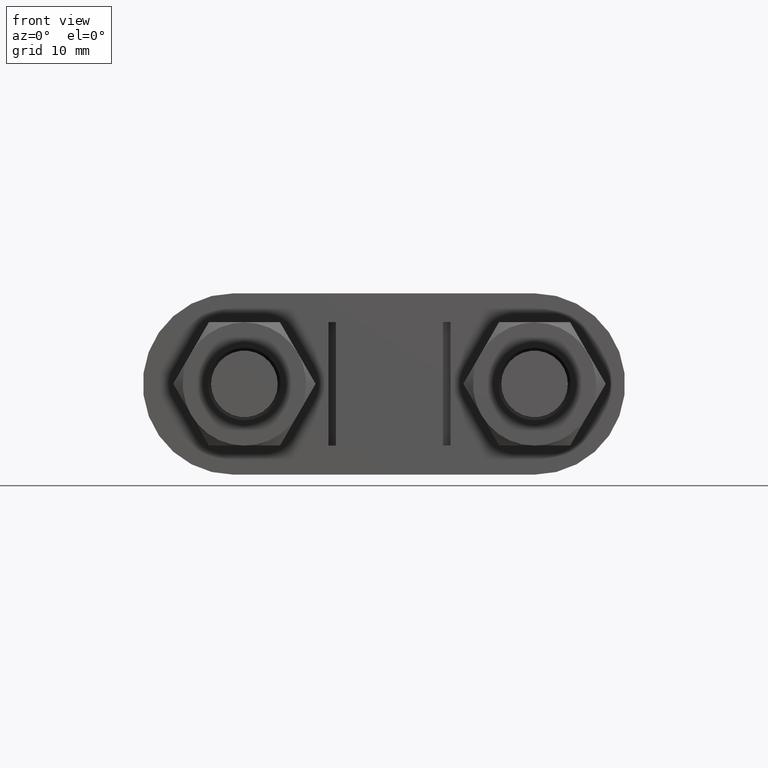
[diagram: clean part render]
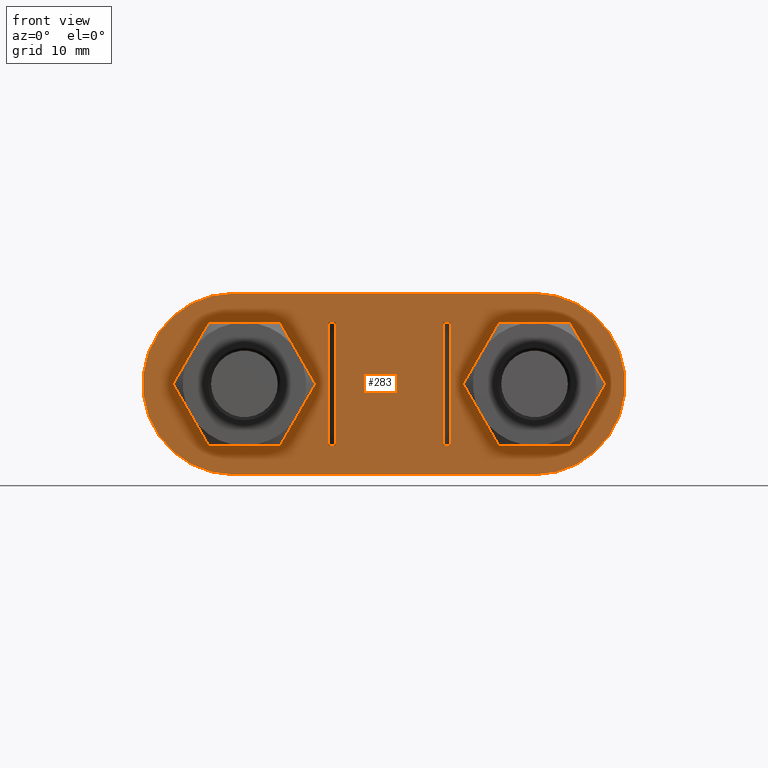
[diagram: same view with one face highlighted and labeled with its STEP entity id]
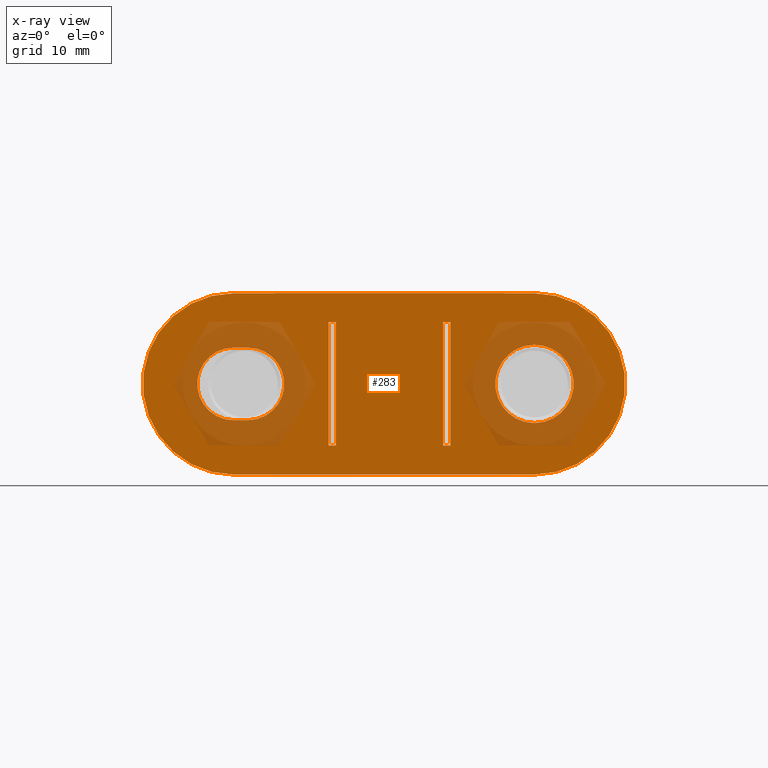
[diagram: x-ray of the same camera — body ghosted, the highlighted face saturated]
A machine part, front view. The second image highlights one B-rep face of the part: STEP entity #283.
The next image is the same camera in x-ray: the body ghosted, the highlighted face saturated — about 24% of this face is hidden behind the body in this view.
In plain terms, the highlighted planar face has unit normal (-0, 1, -0).
Its self-contained STEP definition (entity closure, byte-faithful):
#283 = ADVANCED_FACE( '', ( #407, #408, #409, #410, #411 ), #412, .F. );
#407 = FACE_OUTER_BOUND( '', #1510, .T. );
#408 = FACE_BOUND( '', #1511, .T. );
#409 = FACE_BOUND( '', #1512, .T. );
#410 = FACE_BOUND( '', #1513, .T. );
#411 = FACE_BOUND( '', #1514, .T. );
#412 = PLANE( '', #1515 );
#1510 = EDGE_LOOP( '', ( #1808, #1809, #1810, #1811 ) );
#1511 = EDGE_LOOP( '', ( #1812, #1813, #1814, #1815 ) );
#1512 = EDGE_LOOP( '', ( #1816 ) );
#1513 = EDGE_LOOP( '', ( #1817, #1818, #1819, #1820 ) );
#1514 = EDGE_LOOP( '', ( #1821, #1822, #1823, #1824 ) );
#1515 = AXIS2_PLACEMENT_3D( '', #1825, #1826, #1827 );
#1808 = ORIENTED_EDGE( '', *, *, #2445, .F. );
#1809 = ORIENTED_EDGE( '', *, *, #2446, .F. );
#1810 = ORIENTED_EDGE( '', *, *, #2447, .F. );
#1811 = ORIENTED_EDGE( '', *, *, #2448, .F. );
#1812 = ORIENTED_EDGE( '', *, *, #2449, .F. );
#1813 = ORIENTED_EDGE( '', *, *, #2450, .T. );
#1814 = ORIENTED_EDGE( '', *, *, #2451, .T. );
#1815 = ORIENTED_EDGE( '', *, *, #2452, .F. );
#1816 = ORIENTED_EDGE( '', *, *, #2453, .T. );
#1817 = ORIENTED_EDGE( '', *, *, #2454, .F. );
#1818 = ORIENTED_EDGE( '', *, *, #2455, .F. );
#1819 = ORIENTED_EDGE( '', *, *, #2456, .F. );
#1820 = ORIENTED_EDGE( '', *, *, #2457, .F. );
#1821 = ORIENTED_EDGE( '', *, *, #2458, .T. );
#1822 = ORIENTED_EDGE( '', *, *, #2459, .T. );
#1823 = ORIENTED_EDGE( '', *, *, #2460, .F. );
#1824 = ORIENTED_EDGE( '', *, *, #2461, .F. );
#1825 = CARTESIAN_POINT( '', ( -21.5000000000000, 31.4500000000000, 4.98136013009509E-012 ) );
#1826 = DIRECTION( '', ( -2.21986968519356E-032, 1.00000000000000, -4.52605671983580E-017 ) );
#1827 = DIRECTION( '', ( 1.00000000000000, -2.73691106313441E-048, -4.90464398173537E-016 ) );
#2445 = EDGE_CURVE( '', #2671, #2672, #2673, .T. );
#2446 = EDGE_CURVE( '', #2674, #2671, #2675, .F. );
#2447 = EDGE_CURVE( '', #2676, #2674, #2677, .T. );
#2448 = EDGE_CURVE( '', #2672, #2676, #2678, .F. );
#2449 = EDGE_CURVE( '', #2679, #2680, #2681, .F. );
#2450 = EDGE_CURVE( '', #2679, #2682, #2683, .T. );
#2451 = EDGE_CURVE( '', #2682, #2684, #2685, .T. );
#2452 = EDGE_CURVE( '', #2680, #2684, #2686, .T. );
#2453 = EDGE_CURVE( '', #2687, #2687, #2688, .T. );
#2454 = EDGE_CURVE( '', #2689, #2690, #2691, .F. );
#2455 = EDGE_CURVE( '', #2692, #2689, #2693, .T. );
#2456 = EDGE_CURVE( '', #2694, #2692, #2695, .F. );
#2457 = EDGE_CURVE( '', #2690, #2694, #2696, .T. );
#2458 = EDGE_CURVE( '', #2697, #2698, #2699, .F. );
#2459 = EDGE_CURVE( '', #2698, #2700, #2701, .T. );
#2460 = EDGE_CURVE( '', #2702, #2700, #2703, .T. );
#2461 = EDGE_CURVE( '', #2697, #2702, #2704, .T. );
#2671 = VERTEX_POINT( '', #3209 );
#2672 = VERTEX_POINT( '', #3210 );
#2673 = CIRCLE( '', #3211, 12.5000000000000 );
#2674 = VERTEX_POINT( '', #3212 );
#2675 = LINE( '', #3213, #3214 );
#2676 = VERTEX_POINT( '', #3215 );
#2677 = CIRCLE( '', #3216, 12.5000000000000 );
#2678 = LINE( '', #3217, #3218 );
#2679 = VERTEX_POINT( '', #3219 );
#2680 = VERTEX_POINT( '', #3220 );
#2681 = LINE( '', #3221, #3222 );
#2682 = VERTEX_POINT( '', #3223 );
#2683 = LINE( '', #3224, #3225 );
#2684 = VERTEX_POINT( '', #3226 );
#2685 = LINE( '', #3227, #3228 );
#2686 = LINE( '', #3229, #3230 );
#2687 = VERTEX_POINT( '', #3231 );
#2688 = CIRCLE( '', #3232, 5.40000000000000 );
#2689 = VERTEX_POINT( '', #3233 );
#2690 = VERTEX_POINT( '', #3234 );
#2691 = CIRCLE( '', #3235, 5.00000000000000 );
#2692 = VERTEX_POINT( '', #3236 );
#2693 = LINE( '', #3237, #3238 );
#2694 = VERTEX_POINT( '', #3239 );
#2695 = CIRCLE( '', #3240, 5.00000000000000 );
#2696 = LINE( '', #3241, #3242 );
#2697 = VERTEX_POINT( '', #3243 );
#2698 = VERTEX_POINT( '', #3244 );
#2699 = LINE( '', #3245, #3246 );
#2700 = VERTEX_POINT( '', #3247 );
#2701 = LINE( '', #3248, #3249 );
#2702 = VERTEX_POINT( '', #3250 );
#2703 = LINE( '', #3251, #3252 );
#2704 = LINE( '', #3253, #3254 );
#3209 = CARTESIAN_POINT( '', ( -21.5000000000029, 31.4500000000000, -12.4999999999950 ) );
#3210 = CARTESIAN_POINT( '', ( -21.4999999999986, 31.4500000000000, 12.5000000000050 ) );
#3211 = AXIS2_PLACEMENT_3D( '', #3763, #3764, #3765 );
#3212 = CARTESIAN_POINT( '', ( 19.9999999999971, 31.4500000000000, -12.5000000000046 ) );
#3213 = CARTESIAN_POINT( '', ( 19.9999999999971, 31.4500000000000, -12.5000000000046 ) );
#3214 = VECTOR( '', #3766, 1000.00000000000 );
#3215 = CARTESIAN_POINT( '', ( 20.0000000000015, 31.4500000000000, 12.5000000000002 ) );
#3216 = AXIS2_PLACEMENT_3D( '', #3767, #3768, #3769 );
#3217 = CARTESIAN_POINT( '', ( -21.4999999999971, 31.4500000000000, 12.5000000000050 ) );
#3218 = VECTOR( '', #3770, 1000.00000000000 );
#3219 = CARTESIAN_POINT( '', ( -8.40000000000195, 31.4500000000000, -8.49999999999806 ) );
#3220 = CARTESIAN_POINT( '', ( -7.40000000000195, 31.4500000000000, -8.49999999999806 ) );
#3221 = CARTESIAN_POINT( '', ( -8.40000000000195, 31.4500000000000, -8.49999999999806 ) );
#3222 = VECTOR( '', #3771, 1000.00000000000 );
#3223 = CARTESIAN_POINT( '', ( -8.39999999999801, 31.4500000000000, 8.50000000000195 ) );
#3224 = CARTESIAN_POINT( '', ( -8.39999999999998, 31.4500000000000, 1.94677088354151E-012 ) );
#3225 = VECTOR( '', #3772, 1000.00000000000 );
#3226 = CARTESIAN_POINT( '', ( -7.39999999999801, 31.4500000000000, 8.50000000000195 ) );
#3227 = CARTESIAN_POINT( '', ( -21.5000000000000, 31.4500000000000, 8.50000000000195 ) );
#3228 = VECTOR( '', #3773, 1000.00000000000 );
#3229 = CARTESIAN_POINT( '', ( -7.40000000000195, 31.4500000000000, -8.49999999999829 ) );
#3230 = VECTOR( '', #3774, 1000.00000000000 );
#3231 = CARTESIAN_POINT( '', ( 20.0000000000000, 31.4500000000000, 5.39999999999537 ) );
#3232 = AXIS2_PLACEMENT_3D( '', #3775, #3776, #3777 );
#3233 = CARTESIAN_POINT( '', ( -21.4999999999994, 31.4500000000000, 5.00000000000475 ) );
#3234 = CARTESIAN_POINT( '', ( -21.5000000000012, 31.4500000000000, -4.99999999999502 ) );
#3235 = AXIS2_PLACEMENT_3D( '', #3778, #3779, #3780 );
#3236 = CARTESIAN_POINT( '', ( -19.4999999999994, 31.4500000000000, 5.00000000000452 ) );
#3237 = CARTESIAN_POINT( '', ( -19.4999999999988, 31.4500000000000, 5.00000000000452 ) );
#3238 = VECTOR( '', #3781, 1000.00000000000 );
#3239 = CARTESIAN_POINT( '', ( -19.5000000000012, 31.4500000000000, -4.99999999999548 ) );
#3240 = AXIS2_PLACEMENT_3D( '', #3782, #3783, #3784 );
#3241 = CARTESIAN_POINT( '', ( -21.5000000000012, 31.4500000000000, -4.99999999999502 ) );
#3242 = VECTOR( '', #3785, 1000.00000000000 );
#3243 = CARTESIAN_POINT( '', ( 8.39999999999805, 31.4500000000000, -8.50000000000195 ) );
#3244 = CARTESIAN_POINT( '', ( 7.39999999999805, 31.4500000000000, -8.50000000000195 ) );
#3245 = CARTESIAN_POINT( '', ( -21.5000000000000, 31.4500000000000, -8.50000000000195 ) );
#3246 = VECTOR( '', #3786, 1000.00000000000 );
#3247 = CARTESIAN_POINT( '', ( 7.40000000000199, 31.4500000000000, 8.49999999999805 ) );
#3248 = CARTESIAN_POINT( '', ( 7.40000000000002, 31.4500000000000, -1.71326805504982E-012 ) );
#3249 = VECTOR( '', #3787, 1000.00000000000 );
#3250 = CARTESIAN_POINT( '', ( 8.40000000000199, 31.4500000000000, 8.49999999999805 ) );
#3251 = CARTESIAN_POINT( '', ( 8.40000000000199, 31.4500000000000, 8.49999999999805 ) );
#3252 = VECTOR( '', #3788, 1000.00000000000 );
#3253 = CARTESIAN_POINT( '', ( 8.39999999999805, 31.4500000000000, -8.50000000000195 ) );
#3254 = VECTOR( '', #3789, 1000.00000000000 );
#3763 = CARTESIAN_POINT( '', ( -21.5000000000000, 31.4500000000000, 4.98136013009509E-012 ) );
#3764 = DIRECTION( '', ( -2.21986968519356E-032, 1.00000000000000, -4.52605671983580E-017 ) );
#3765 = DIRECTION( '', ( 0.000000000000000, 4.52605671983580E-017, 1.00000000000000 ) );
#3766 = DIRECTION( '', ( 1.00000000000000, -1.04623227163582E-029, -2.31648034088059E-013 ) );
#3767 = CARTESIAN_POINT( '', ( 20.0000000000000, 31.4500000000000, -4.62856383760743E-012 ) );
#3768 = DIRECTION( '', ( -2.21986968519356E-032, 1.00000000000000, -4.52605671983580E-017 ) );
#3769 = DIRECTION( '', ( 0.000000000000000, 4.52605671983580E-017, 1.00000000000000 ) );
#3770 = DIRECTION( '', ( -1.00000000000000, -2.21986968519351E-032, 1.04845214256143E-029 ) );
#3771 = DIRECTION( '', ( -1.00000000000000, -2.21986968519328E-032, 6.19371824878975E-029 ) );
#3772 = DIRECTION( '', ( 2.31648034088059E-013, 4.52605671983580E-017, 1.00000000000000 ) );
#3773 = DIRECTION( '', ( 1.00000000000000, 2.21986968519328E-032, -6.19371824878975E-029 ) );
#3774 = DIRECTION( '', ( 2.31648034088059E-013, 4.52605671983580E-017, 1.00000000000000 ) );
#3775 = CARTESIAN_POINT( '', ( 20.0000000000000, 31.4500000000000, -4.63029856108340E-012 ) );
#3776 = DIRECTION( '', ( -2.21986968519356E-032, 1.00000000000000, -4.52605671983580E-017 ) );
#3777 = DIRECTION( '', ( 0.000000000000000, 4.52605671983580E-017, 1.00000000000000 ) );
#3778 = CARTESIAN_POINT( '', ( -21.5000000000000, 31.4500000000000, 4.98309485357106E-012 ) );
#3779 = DIRECTION( '', ( -2.21986968519356E-032, 1.00000000000000, -4.52605671983580E-017 ) );
#3780 = DIRECTION( '', ( 0.000000000000000, 4.52605671983580E-017, 1.00000000000000 ) );
#3781 = DIRECTION( '', ( -1.00000000000000, -2.21986968519351E-032, 1.04845214256143E-029 ) );
#3782 = CARTESIAN_POINT( '', ( -19.5000000000000, 31.4500000000000, 4.51979878539495E-012 ) );
#3783 = DIRECTION( '', ( -2.21986968519356E-032, 1.00000000000000, -4.52605671983580E-017 ) );
#3784 = DIRECTION( '', ( 0.000000000000000, 4.52605671983580E-017, 1.00000000000000 ) );
#3785 = DIRECTION( '', ( 1.00000000000000, -1.04623227163582E-029, -2.31648034088059E-013 ) );
#3786 = DIRECTION( '', ( 1.00000000000000, 2.21986968519328E-032, -6.19371824878975E-029 ) );
#3787 = DIRECTION( '', ( 2.31648034088059E-013, 4.52605671983580E-017, 1.00000000000000 ) );
#3788 = DIRECTION( '', ( -1.00000000000000, -2.21986968519328E-032, 6.19371824878975E-029 ) );
#3789 = DIRECTION( '', ( 2.31648034088059E-013, 4.52605671983580E-017, 1.00000000000000 ) );